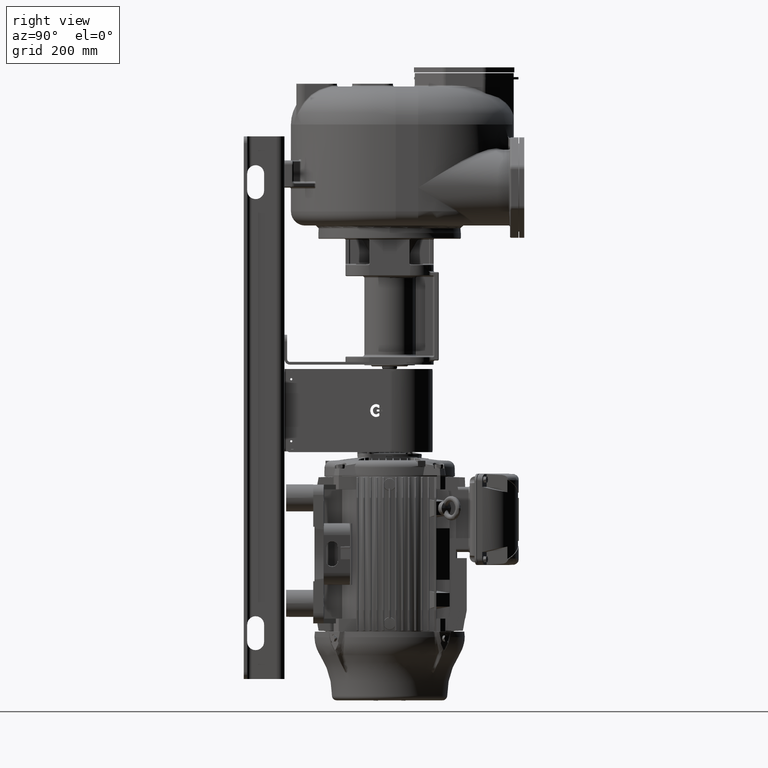
[diagram: clean part render]
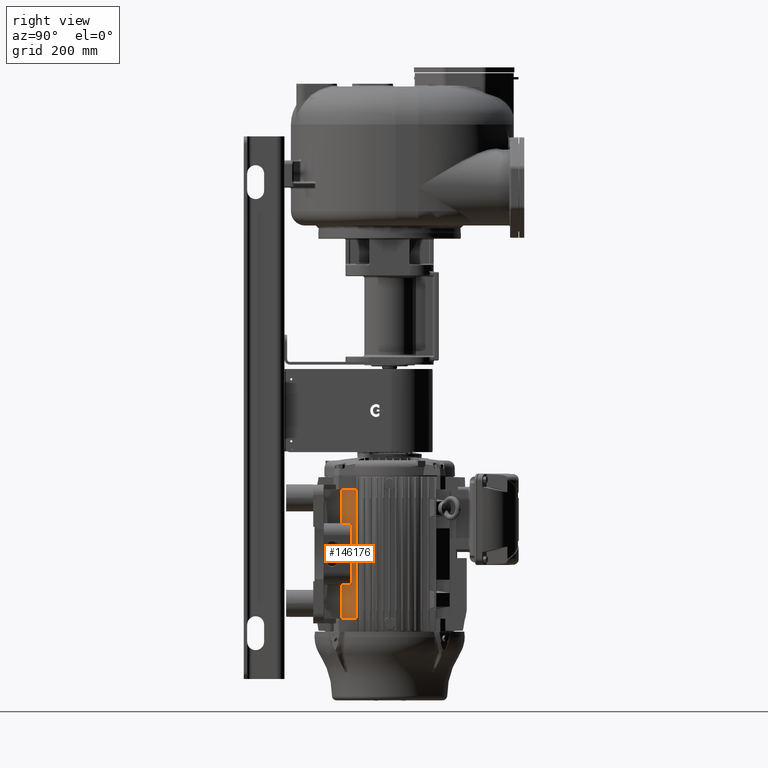
[diagram: same view with one face highlighted and labeled with its STEP entity id]
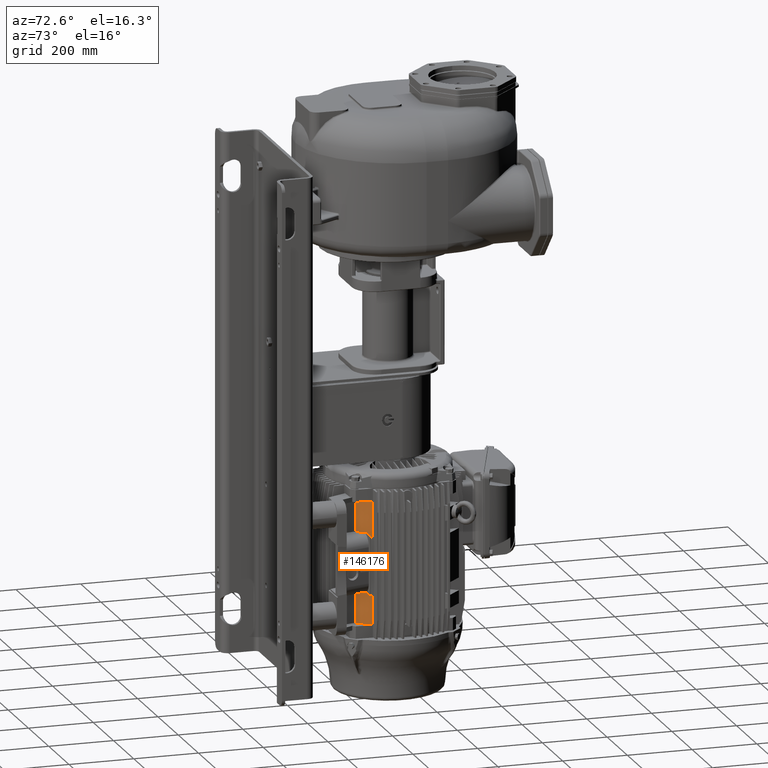
[diagram: same view with one face highlighted and labeled with its STEP entity id]
A machine part, right view. The second image highlights one B-rep face of the part: STEP entity #146176.
A second angle (auxiliary view) of the same face is appended — the face is thin or edge-on in the first view.
In plain terms, the highlighted cylindrical surface (partial cylindrical patch) has radius 190 mm, axis along (0, 0, 1).
Its self-contained STEP definition (entity closure, byte-faithful):
#85369=CARTESIAN_POINT('',(0.E0,3.1E2,-1.321E3));
#85370=DIRECTION('',(0.E0,0.E0,-1.E0));
#85371=DIRECTION('',(8.558589499133E-1,-5.172092979185E-1,0.E0));
#85372=AXIS2_PLACEMENT_3D('',#85369,#85370,#85371);
#85394=DIRECTION('',(0.E0,0.E0,1.E0));
#85395=VECTOR('',#85394,3.81E2);
#85396=CARTESIAN_POINT('',(1.626132004835E2,2.117302333955E2,-1.321E3));
#85397=LINE('',#85396,#85395);
#85398=DIRECTION('',(0.E0,0.E0,-1.E0));
#85399=VECTOR('',#85398,1.E2);
#85400=CARTESIAN_POINT('',(1.284223324930E2,1.699724865712E2,-1.221E3));
#85401=LINE('',#85400,#85399);
#85402=DIRECTION('',(0.E0,0.E0,-1.E0));
#85403=VECTOR('',#85402,1.81E2);
#85404=CARTESIAN_POINT('',(1.542980714496E2,1.991302333955E2,-1.04E3));
#85405=LINE('',#85404,#85403);
#85406=DIRECTION('',(0.E0,0.E0,-1.E0));
#85407=VECTOR('',#85406,1.E2);
#85408=CARTESIAN_POINT('',(1.284223324930E2,1.699724865712E2,-9.4E2));
#85409=LINE('',#85408,#85407);
#85418=CARTESIAN_POINT('',(0.E0,3.1E2,-1.221E3));
#85419=DIRECTION('',(0.E0,0.E0,1.E0));
#85420=DIRECTION('',(6.759070131212E-1,-7.369869127832E-1,0.E0));
#85421=AXIS2_PLACEMENT_3D('',#85418,#85419,#85420);
#104071=CARTESIAN_POINT('',(0.E0,3.1E2,-9.4E2));
#104072=DIRECTION('',(0.E0,0.E0,1.E0));
#104073=DIRECTION('',(6.759070131212E-1,-7.369869127832E-1,0.E0));
#104074=AXIS2_PLACEMENT_3D('',#104071,#104072,#104073);
#104112=CARTESIAN_POINT('',(0.E0,3.1E2,-1.04E3));
#104113=DIRECTION('',(0.E0,0.E0,-1.E0));
#104114=DIRECTION('',(8.120951128926E-1,-5.835250873922E-1,0.E0));
#104115=AXIS2_PLACEMENT_3D('',#104112,#104113,#104114);
#121373=CARTESIAN_POINT('',(1.542980714496E2,1.991302333955E2,-1.04E3));
#121374=CARTESIAN_POINT('',(1.284223324930E2,1.699724865712E2,-1.04E3));
#121375=VERTEX_POINT('',#121373);
#121376=VERTEX_POINT('',#121374);
#121377=CARTESIAN_POINT('',(1.284223324930E2,1.699724865712E2,-1.221E3));
#121378=CARTESIAN_POINT('',(1.542980714496E2,1.991302333955E2,-1.221E3));
#121379=VERTEX_POINT('',#121377);
#121380=VERTEX_POINT('',#121378);
#121381=CARTESIAN_POINT('',(1.284223324930E2,1.699724865712E2,-1.321E3));
#121382=VERTEX_POINT('',#121381);
#121387=CARTESIAN_POINT('',(1.626132004835E2,2.117302333955E2,-1.321E3));
#121388=VERTEX_POINT('',#121387);
#122868=CARTESIAN_POINT('',(1.284223324930E2,1.699724865712E2,-9.4E2));
#122870=VERTEX_POINT('',#122868);
#123228=CARTESIAN_POINT('',(1.626132004835E2,2.117302333955E2,-9.4E2));
#123229=VERTEX_POINT('',#123228);
#146156=CARTESIAN_POINT('',(0.E0,3.1E2,-1.014756530409E3));
#146157=DIRECTION('',(0.E0,0.E0,1.E0));
#146158=DIRECTION('',(1.E0,0.E0,0.E0));
#146159=AXIS2_PLACEMENT_3D('',#146156,#146157,#146158);
#146160=CYLINDRICAL_SURFACE('',#146159,1.9E2);
#146161=ORIENTED_EDGE('',*,*,#146001,.F.);
#146162=ORIENTED_EDGE('',*,*,#146129,.T.);
#146163=ORIENTED_EDGE('',*,*,#146146,.F.);
#146165=ORIENTED_EDGE('',*,*,#146164,.T.);
#146167=ORIENTED_EDGE('',*,*,#146166,.F.);
#146169=ORIENTED_EDGE('',*,*,#146168,.T.);
#146171=ORIENTED_EDGE('',*,*,#146170,.F.);
#146173=ORIENTED_EDGE('',*,*,#146172,.T.);
#146174=EDGE_LOOP('',(#146161,#146162,#146163,#146165,#146167,#146169,#146171,
#146173));
#146175=FACE_OUTER_BOUND('',#146174,.F.);
#146176=ADVANCED_FACE('',(#146175),#146160,.T.);
#85373=CIRCLE('',#85372,1.9E2);
#85422=CIRCLE('',#85421,1.9E2);
#104075=CIRCLE('',#104074,1.9E2);
#104116=CIRCLE('',#104115,1.9E2);
#146001=EDGE_CURVE('',#121388,#123229,#85397,.T.);
#146129=EDGE_CURVE('',#121388,#121382,#85373,.T.);
#146146=EDGE_CURVE('',#121379,#121382,#85401,.T.);
#146164=EDGE_CURVE('',#121379,#121380,#85422,.T.);
#146166=EDGE_CURVE('',#121375,#121380,#85405,.T.);
#146168=EDGE_CURVE('',#121375,#121376,#104116,.T.);
#146170=EDGE_CURVE('',#122870,#121376,#85409,.T.);
#146172=EDGE_CURVE('',#122870,#123229,#104075,.T.);